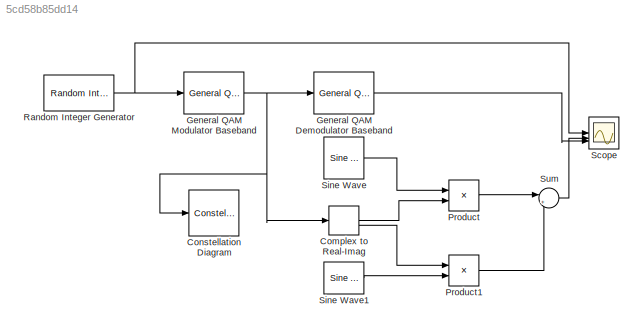
MODEL slx_5cd58b85dd14
KIND model
CONFIG AbsTol = auto
CONFIG EnableMultiTasking = off
CONFIG FixedStep = auto
CONFIG MaxStep = auto
CONFIG MinStep = auto
CONFIG RelTol = 1e-3
CONFIG SampleTimeConstraint = Unconstrained
CONFIG SolverName = VariableStepAuto
CONFIG StartTime = 0.0
CONFIG StopTime = 10.0
BLOCK [ComplexToRealImag] Complex to Real-Imag
BLOCK [ConstellationDiagram] Constellation Diagram
  DefaultConfigurationName = comm.scopes.ConstellationDiagramBlockCfg
  ScopeFrameLocation = window
  ScopeSpecificationString = comm.scopes.ConstellationDiagramBlockCfg('CurrentConfiguration', extmgr.ConfigurationSet(extmgr.Configuration('Tools','Measurements',true),extmgr.Configuration('Core','General UI',true,'ShowNewAction',false,'ShowLoadConfigSet',false,'ShowSaveConfigSet',false,'FigureColor',[0.156862745098039 0.156862745098039 0.156862745098039]),extmgr.Configuration('Tools','Plot Navigation',true,'XDataDisplay',80,...<+365ch>
  WasSavedAsWebScope = on
  WindowPosition = [382.000000,84.000000,600.000000,600.000000,]
BLOCK [Reference] General QAM Demodulator Baseband  REF=commdigbbndam3/General QAM
Demodulator
Baseband
  SourceBlock = commdigbbndam3/General QAM\nDemodulator\nBaseband
  SourceType = General QAM Demodulator Baseband
BLOCK [Reference] General QAM Modulator Baseband  REF=commdigbbndam3/General QAM
Modulator
Baseband
  SourceBlock = commdigbbndam3/General QAM\nModulator\nBaseband
  SourceType = General QAM Modulator Baseband
BLOCK [Product] Product
BLOCK [Product] Product1
BLOCK [Reference] Random Integer Generator  REF=commrandsrc3/Random Integer
Generator
  SourceBlock = commrandsrc3/Random Integer\nGenerator
  SourceType = Random Integer Generator
BLOCK [Scope] Scope
  Floating = off
  NumInputPorts = 3
  ScopeSpecificationString = Simulink.scopes.TimeScopeBlockCfg('CurrentConfiguration', extmgr.ConfigurationSet(extmgr.Configuration('Core','General UI',true),extmgr.Configuration('Core','Source UI',true),extmgr.Configuration('Sources','WiredSimulink',true),extmgr.Configuration('Visuals','Time Domain',true,'SerializedDisplays',{struct('MinYLimReal','-0.875','MaxYLimReal','7.875','YLabelReal','','MinYLimMag','0.00000','MaxYLimM...<+2042ch>
BLOCK [Reference] Sine Wave  REF=dspsrcs4/Sine Wave
  LibrarySourceBlock = dsphdlsupportsrcs/Sine Wave
  SourceBlock = dspsrcs4/Sine Wave
  SourceType = Sine Wave
BLOCK [Reference] Sine Wave1  REF=dspsrcs4/Sine Wave
  LibrarySourceBlock = dsphdlsupportsrcs/Sine Wave
  SourceBlock = dspsrcs4/Sine Wave
  SourceType = Sine Wave
BLOCK [Sum] Sum
  Inputs = |++
LINE Complex to Real-Imag:1 -> Product:2
LINE Complex to Real-Imag:2 -> Product1:1
LINE General QAM Demodulator Baseband:1 -> Scope:3
NET General QAM Modulator Baseband:1 -> Complex to Real-Imag:1, Constellation Diagram:1, General QAM Demodulator Baseband:1
LINE Product1:1 -> Sum:2
LINE Product:1 -> Sum:1
NET Random Integer Generator:1 -> General QAM Modulator Baseband:1, Scope:1
LINE Sine Wave1:1 -> Product1:2
LINE Sine Wave:1 -> Product:1
LINE Sum:1 -> Scope:2
note: NET lines group one-source signal fan-out (src -> all destinations, sorted); 1:1 wires keep LINE
